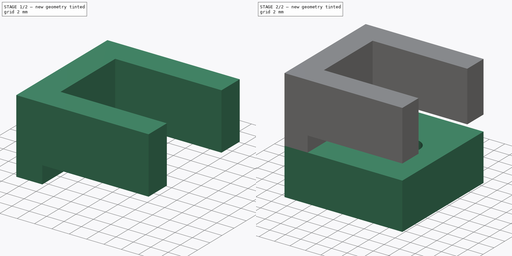
[diagram: build sequence overview — one tinted view per stage of 2, left to right]
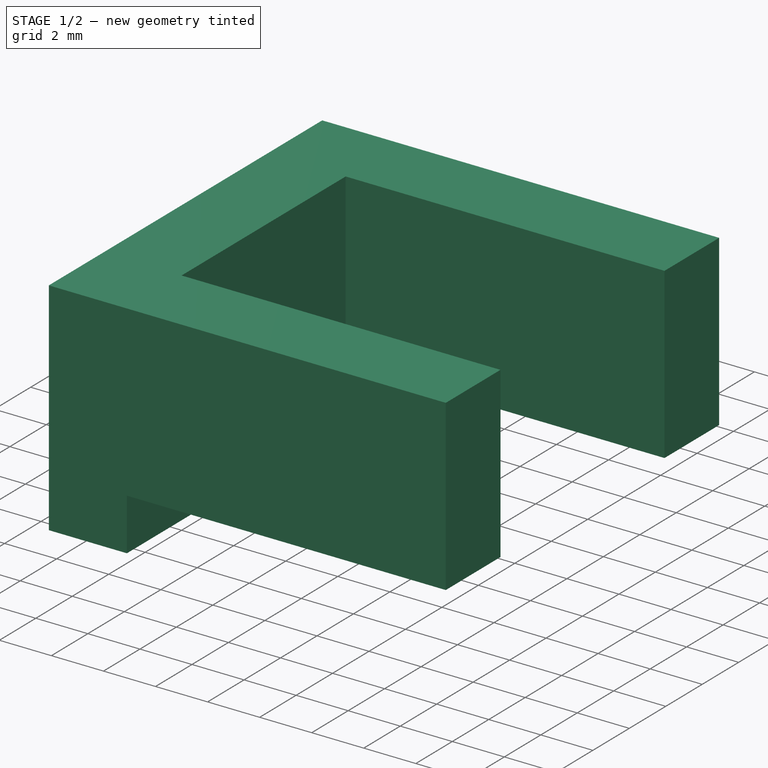
[diagram: stage 1 of 2 — iso view after this stage's code; geometry added in this stage tinted green]
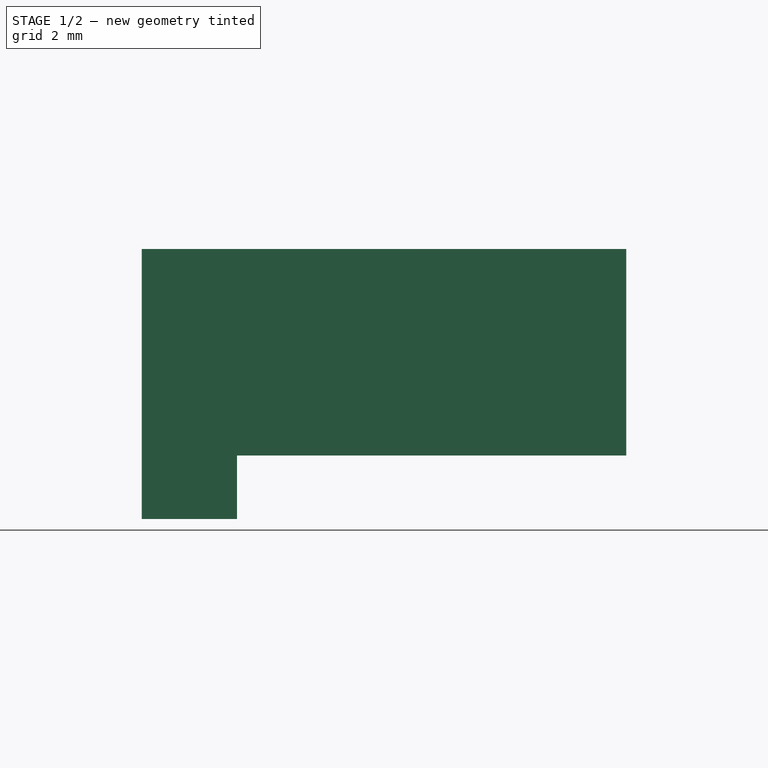
[diagram: stage 1 of 2 — front view after this stage's code; geometry added in this stage tinted green]
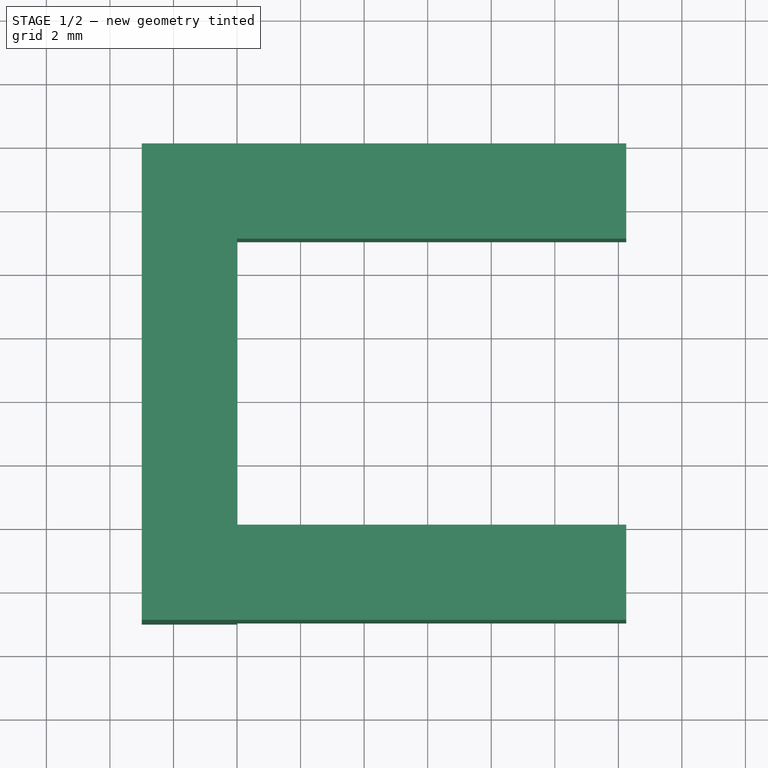
[diagram: stage 1 of 2 — top view after this stage's code; geometry added in this stage tinted green]
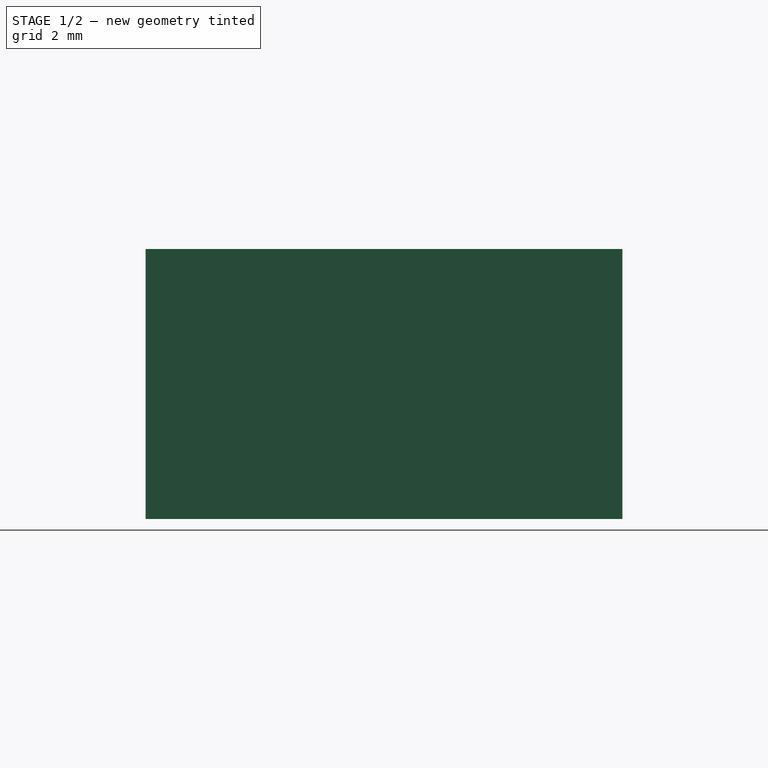
[diagram: stage 1 of 2 — right view after this stage's code; geometry added in this stage tinted green]
FCSTD DOCUMENT  (FreeCAD 0.21R33668 +26 (Git))
Label: Base
License: All rights reserved
LicenseURL: http://en.wikipedia.org/wiki/All_rights_reserved
objects: Sketcher::SketchObject×4, PartDesign::Pad×3, PartDesign::SubShapeBinder×2, PartDesign::Pocket×1, PartDesign::Body×1
note: 15 computed .brp shape members not serialized (recipe doc carries the construction recipe); baked Part::Feature solids carry a one-line shape summary decoded from their .brp
EXTERNAL_REF file=MG/mgn9c_13.FCStd obj=Body
EXTERNAL_REF file=MG/mgn9c_slide.FCStd obj=Body001
EXTERNAL_REF file=MG/Datasheet.FCStd obj=Spreadsheet

FEATURE [PartDesign::SubShapeBinder] Binder  label="Rail"
  BindCopyOnChange = 0
  BindMode = 0
  ClaimChildren = false
  Context = -> Body [Binder.]
  Fuse = false
  MakeFace = true
  OffsetFill = false
  OffsetIntersection = false
  OffsetJoinType = 0
  OffsetOpenResult = false
  PartialLoad = false
  Relative = true
  Support = -> [<external MG/mgn9c_13.FCStd>#Body[LinearPattern.]]
  _Version = 2
FEATURE [PartDesign::SubShapeBinder] Binder001  label="Slide"
  BindCopyOnChange = 0
  BindMode = 0
  ClaimChildren = false
  Context = -> Body [Binder001.]
  Fuse = false
  MakeFace = true
  OffsetFill = false
  OffsetIntersection = false
  OffsetJoinType = 0
  OffsetOpenResult = false
  PartialLoad = false
  Placement = pos=(12,-5.5,2) rot=(0,0,1;0rad)
  Relative = true
  Support = -> [<external MG/mgn9c_slide.FCStd>#Body001]
  _Version = 2
FEATURE [Sketcher::SketchObject] Sketch
  ExternalGeometry = -> [Binder]
  FullyConstrained = true
  MapMode = 5
  Support = -> [XY_Plane]
  expr: Constraints[22] = .Constraints.Strength
  expr: Constraints[30] = .Constraints.Strength
  sketch-geometry (13):
    g0: LineSegment StartX=0 StartY=9 StartZ=0 EndX=12.25 EndY=9 EndZ=0
    g1: LineSegment StartX=12.25 StartY=0 StartZ=0 EndX=0 EndY=0 EndZ=0
    g2: LineSegment StartX=0 StartY=0 StartZ=0 EndX=0 EndY=9 EndZ=0
    g3: LineSegment StartX=12.25 StartY=-3 StartZ=0 EndX=-3 EndY=-3 EndZ=0
    g4: LineSegment StartX=-3 StartY=-3 StartZ=0 EndX=-3 EndY=12 EndZ=0
    g5: LineSegment StartX=-3 StartY=12 StartZ=0 EndX=12.25 EndY=12 EndZ=0
    g6: LineSegment StartX=12.25 StartY=12 StartZ=0 EndX=12.25 EndY=-3 EndZ=0
    g7: LineSegment StartX=12.25 StartY=12 StartZ=0 EndX=12.25 EndY=9 EndZ=0
    g8: LineSegment StartX=12.25 StartY=-3 StartZ=0 EndX=12.25 EndY=0 EndZ=0
    g9: GeomPoint X=12.25 Y=4.5 Z=0
    g10: LineSegment StartX=0 StartY=4.5 StartZ=0 EndX=12.25 EndY=4.5 EndZ=0
    g11: GeomPoint X=9.25 Y=4.5 Z=0
    g12: LineSegment StartX=0 StartY=0 StartZ=0 EndX=12.25 EndY=0 EndZ=0
  constraints (34):
    c: Coincident(g1,g2)
    c: Coincident(g2,g0)
    c: Horizontal(g0)
    c: Horizontal(g1)
    c: Vertical(g2)
    c: Coincident(g0,g-3)
    c: PointOnObject(g1,g-4)
    c: Coincident(g3,g4)
    c: Coincident(g4,g5)
    c: Coincident(g5,g6)
    c: Coincident(g6,g3)
    c: Horizontal(g3)
    c: Horizontal(g5)
    c: Vertical(g4)
    c: Vertical(g6)
    c: PointOnObject(g0,g6)
    c: Coincident(g7,g5)
    c: Coincident(g7,g0)
    c: Coincident(g8,g3)
    c: Coincident(g8,g1)
    c: Vertical(g8)
    c: DistanceY(g8,g8) = 3  'Strength'
    c: DistanceX(g3,g1) = 3
    c: PointOnObject(g9,g6)
    c: PointOnObject(g10,g2)
    c: Coincident(g10,g9)
    c: PointOnObject(g-5,g10)
    c: Symmetric(g3,g5,g10)
    c: PointOnObject(g11,g-5)
    c: PointOnObject(g11,g10)
    c: DistanceX(g11,g9) = 3
    c: Coincident(g12,g2)
    c: Coincident(g12,g8)
    c: DistanceX(g0,g0) = 12.25  'RailOverlap'
FEATURE [PartDesign::Pad] Pad
  Direction = (0,0,1)
  Length = 6.5
  Length2 = 10
  Profile = -> Sketch
  ReferenceAxis = -> Sketch [N_Axis]
  Type = 0
  expr: Length = <<Datasheet>>#<<mgn9c>>.Dim_Hr
FEATURE [Sketcher::SketchObject] Sketch001
  ExternalGeometry = -> [Pad]
  FullyConstrained = true
  MapMode = 5
  Placement = pos=(-3,0,0) rot=(0.57735,-0.57735,-0.57735;2.0944rad)
  Support = -> [Pad]
  sketch-geometry (4):
    g0: LineSegment StartX=-12 StartY=0 StartZ=0 EndX=3 EndY=0 EndZ=0
    g1: LineSegment StartX=3 StartY=0 StartZ=0 EndX=3 EndY=-2 EndZ=0
    g2: LineSegment StartX=3 StartY=-2 StartZ=0 EndX=-12 EndY=-2 EndZ=0
    g3: LineSegment StartX=-12 StartY=-2 StartZ=0 EndX=-12 EndY=0 EndZ=0
  constraints (10):
    c: Coincident(g0,g1)
    c: Coincident(g1,g2)
    c: Coincident(g2,g3)
    c: Coincident(g3,g0)
    c: Horizontal(g2)
    c: Vertical(g1)
    c: Vertical(g3)
    c: Coincident(g0,g-4)
    c: Coincident(g0,g-4)
    c: DistanceY(g1,g1) = 2  'PCB_Thickness'
FEATURE [PartDesign::Pad] Pad001
  BaseFeature = -> Pad
  Direction = (-1,0,0)
  Length = 3
  Length2 = 10
  Profile = -> Sketch001
  ReferenceAxis = -> Sketch001 [N_Axis]
  Reversed = true
  Type = 0
  expr: Length = <<Sketch>>.Constraints.Strength
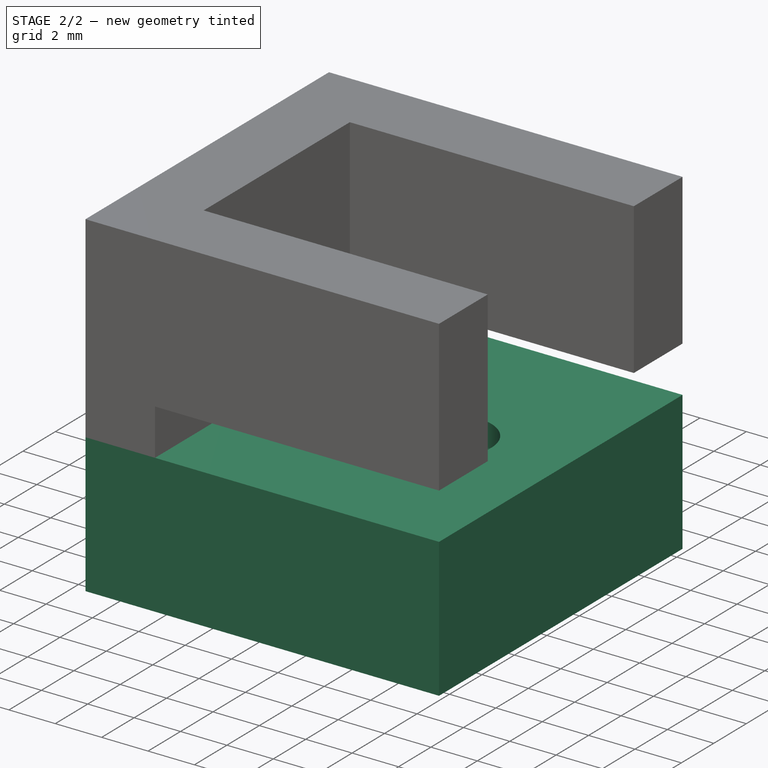
[diagram: stage 2 of 2 — iso view after this stage's code; geometry added in this stage tinted green]
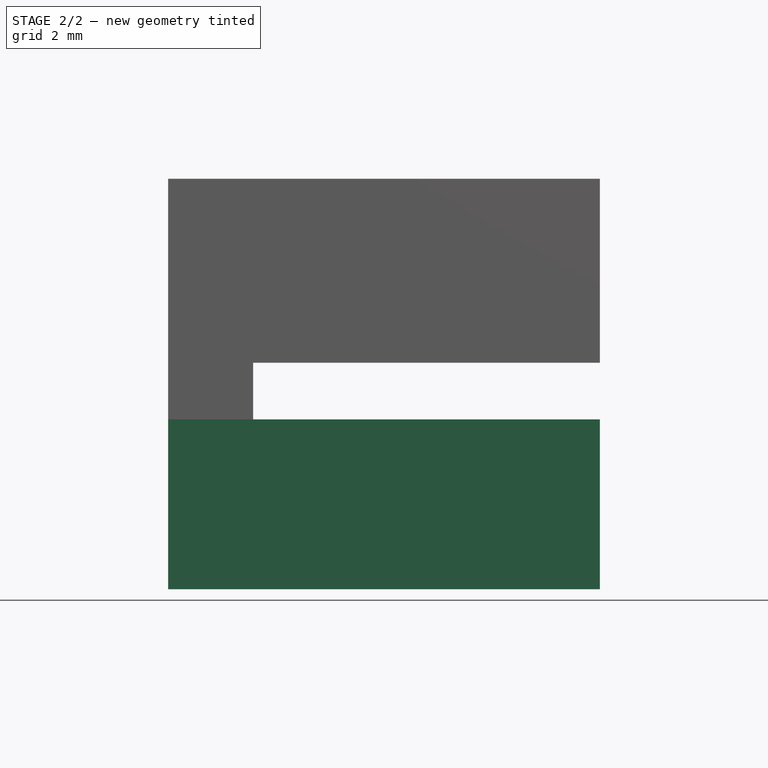
[diagram: stage 2 of 2 — front view after this stage's code; geometry added in this stage tinted green]
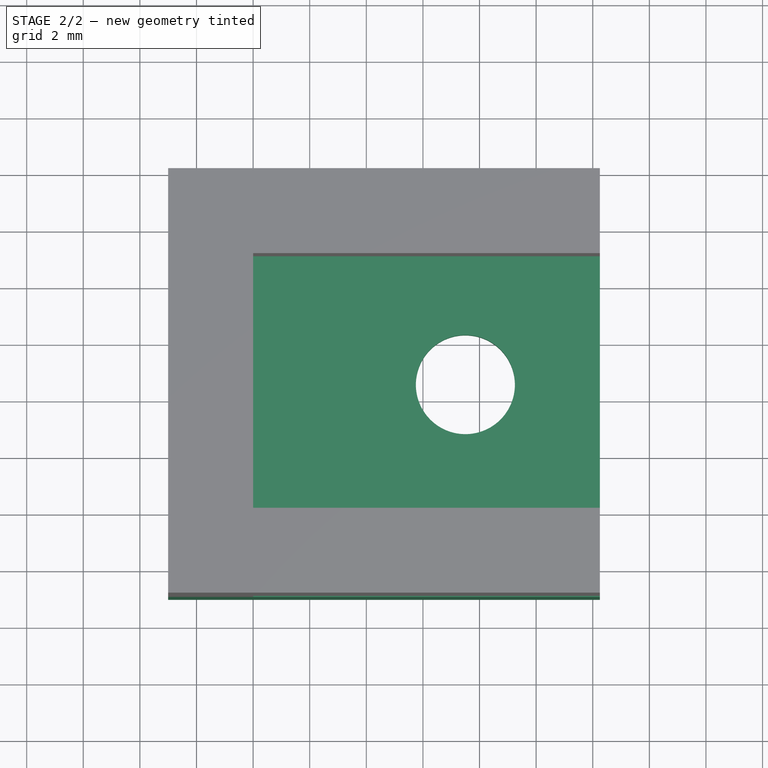
[diagram: stage 2 of 2 — top view after this stage's code; geometry added in this stage tinted green]
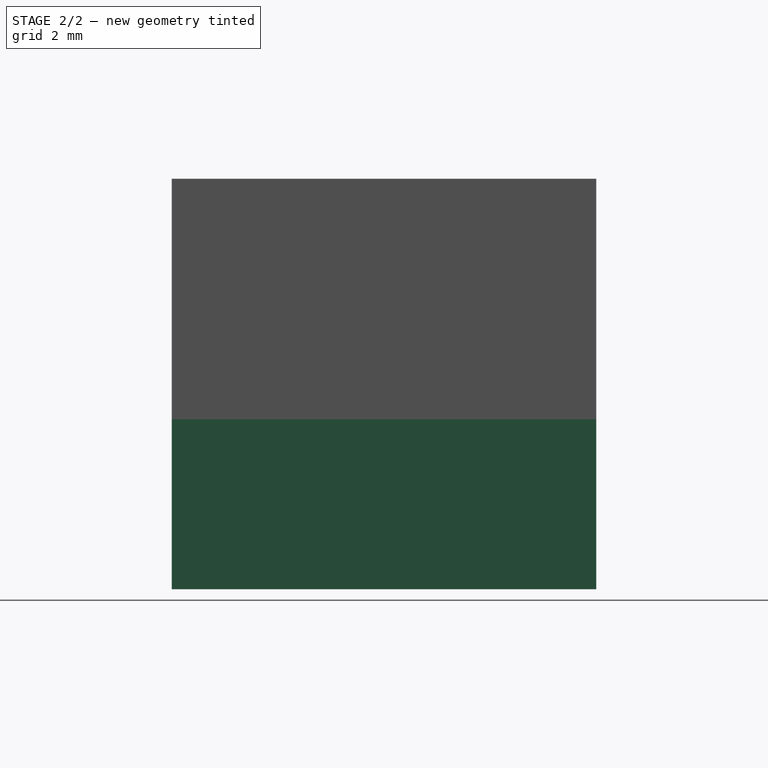
[diagram: stage 2 of 2 — right view after this stage's code; geometry added in this stage tinted green]
FEATURE [Sketcher::SketchObject] Sketch002
  ExternalGeometry = -> [Pad001,Binder]
  FullyConstrained = true
  MapMode = 5
  Placement = pos=(0,0,-2) rot=(1,0,0;3.14159rad)
  Support = -> [Pad001]
  sketch-geometry (5):
    g0: LineSegment StartX=-3 StartY=-12 StartZ=0 EndX=12.25 EndY=-12 EndZ=0
    g1: LineSegment StartX=12.25 StartY=-12 StartZ=0 EndX=12.25 EndY=3 EndZ=0
    g2: LineSegment StartX=12.25 StartY=3 StartZ=0 EndX=-3 EndY=3 EndZ=0
    g3: LineSegment StartX=-3 StartY=3 StartZ=0 EndX=-3 EndY=-12 EndZ=0
    g4: Circle CenterX=7.5 CenterY=-4.5 CenterZ=0 NormalX=0 NormalY=0 NormalZ=1 AngleXU=0 Radius=1.75
  constraints (12):
    c: Coincident(g0,g1)
    c: Coincident(g1,g2)
    c: Coincident(g2,g3)
    c: Coincident(g3,g0)
    c: Horizontal(g0)
    c: Horizontal(g2)
    c: Vertical(g1)
    c: Vertical(g3)
    c: Coincident(g0,g-5)
    c: Coincident(g1,g-4)
    c: Coincident(g4,g-7)
    c: PointOnObject(g-6,g4)
FEATURE [PartDesign::Pad] Pad002
  BaseFeature = -> Pad001
  Direction = (0,0,-1)
  Length = 6
  Length2 = 10
  Profile = -> Sketch002
  ReferenceAxis = -> Sketch002 [N_Axis]
  Type = 0
  expr: Length = 6
FEATURE [Sketcher::SketchObject] Sketch003
  ExternalGeometry = -> [Pad002]
  FullyConstrained = true
  MapMode = 5
  Placement = pos=(0,0,-8) rot=(1,0,0;3.14159rad)
  Support = -> [Pad002]
  expr: Constraints[1] = <<Datasheet>>#<<mgn9c>>.Dim_D
  sketch-geometry (1):
    g0: Circle CenterX=7.5 CenterY=-4.5 CenterZ=0 NormalX=0 NormalY=0 NormalZ=1 AngleXU=0 Radius=3
  constraints (2):
    c: Coincident(g0,g-3)
    c: Diameter(g0) = 6
FEATURE [PartDesign::Pocket] Pocket
  BaseFeature = -> Pad002
  Direction = (0,0,1)
  Length = 5
  Length2 = 5
  Profile = -> Sketch003
  ReferenceAxis = -> Sketch003 [N_Axis]
  Type = 0
FEATURE [PartDesign::Body] Body  label="Base_PCB"
  Group = -> [Sketch,Binder001,Binder,Pad,Sketch001,Pad001,Sketch002,Pad002,Sketch003,Pocket]
  Origin = -> Origin
  Tip = -> Pocket
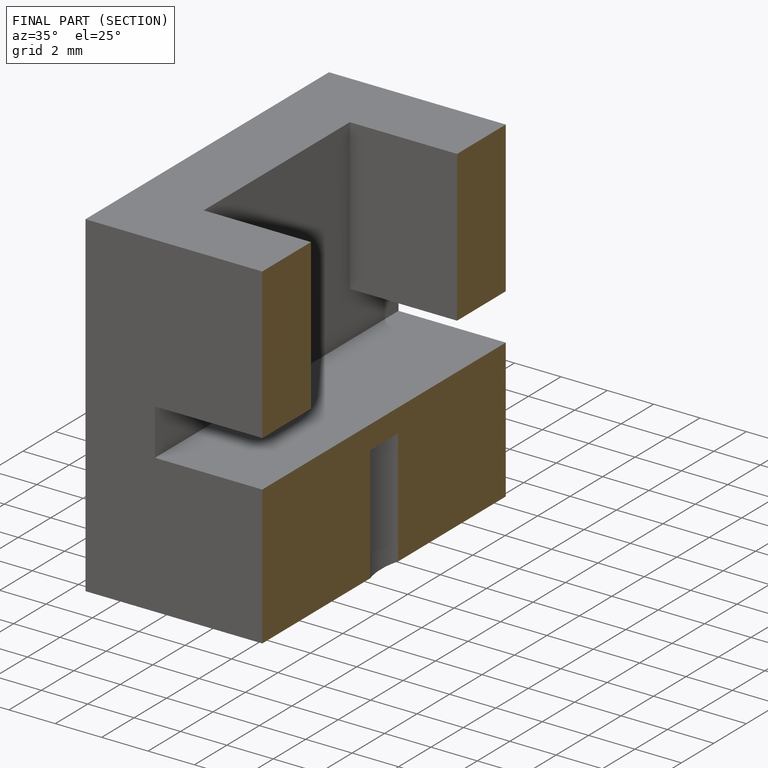
[diagram: finished part — half-section view (interior)]
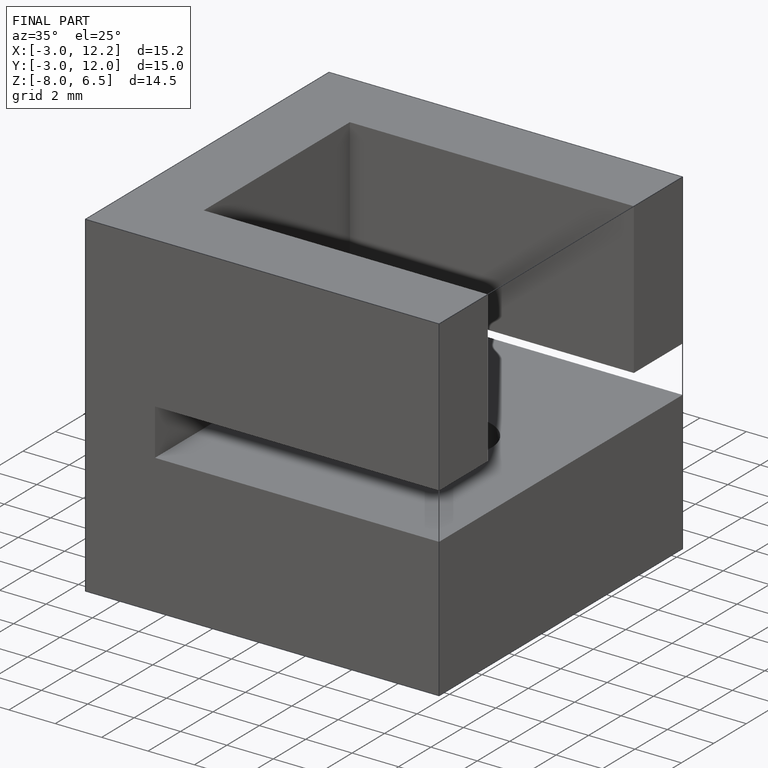
[diagram: finished part — iso view with bounding-box wireframe]
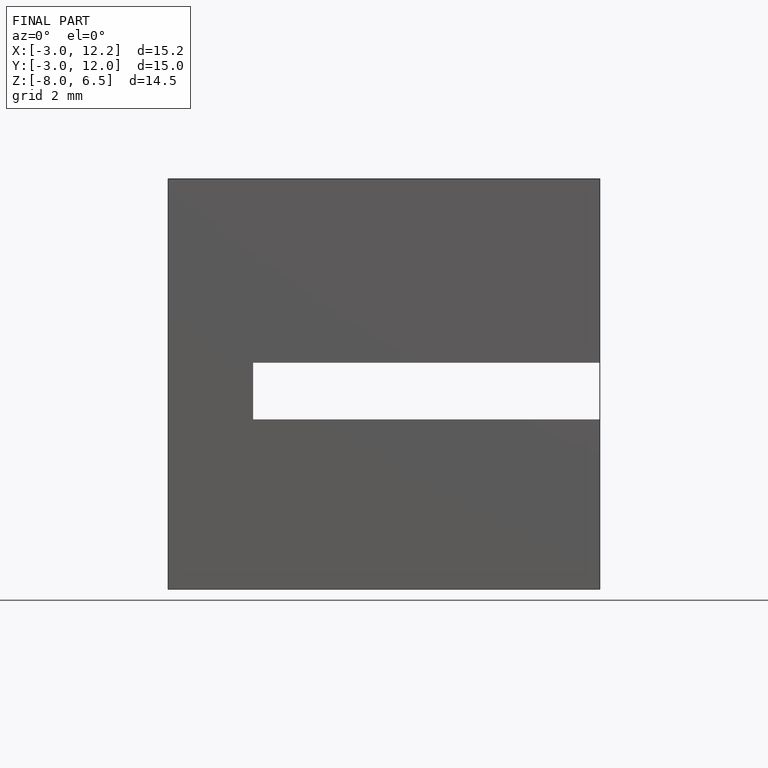
[diagram: finished part — front view with bounding-box wireframe]
